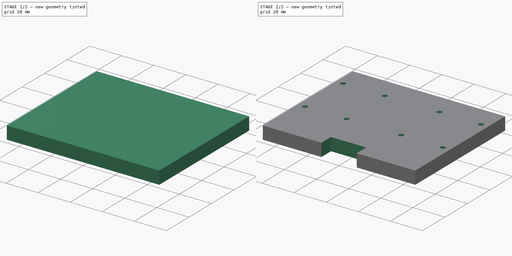
[diagram: build sequence overview — one tinted view per stage of 2, left to right]
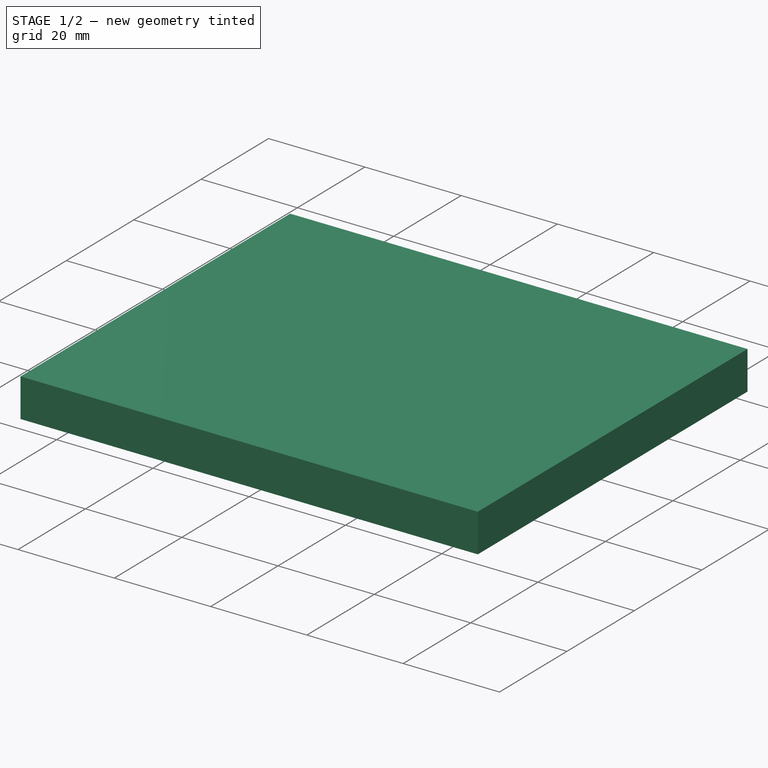
[diagram: stage 1 of 2 — iso view after this stage's code; geometry added in this stage tinted green]
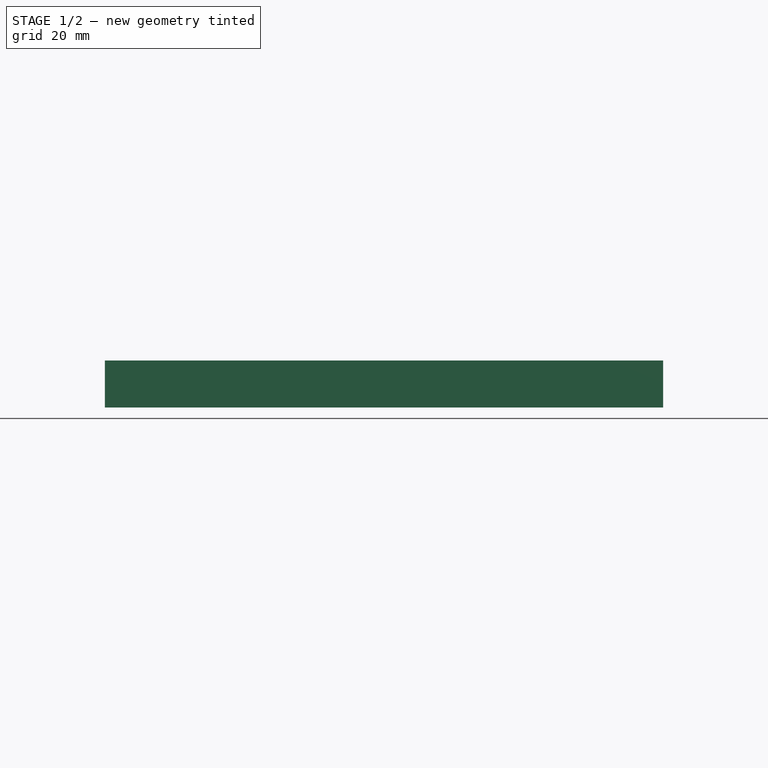
[diagram: stage 1 of 2 — front view after this stage's code; geometry added in this stage tinted green]
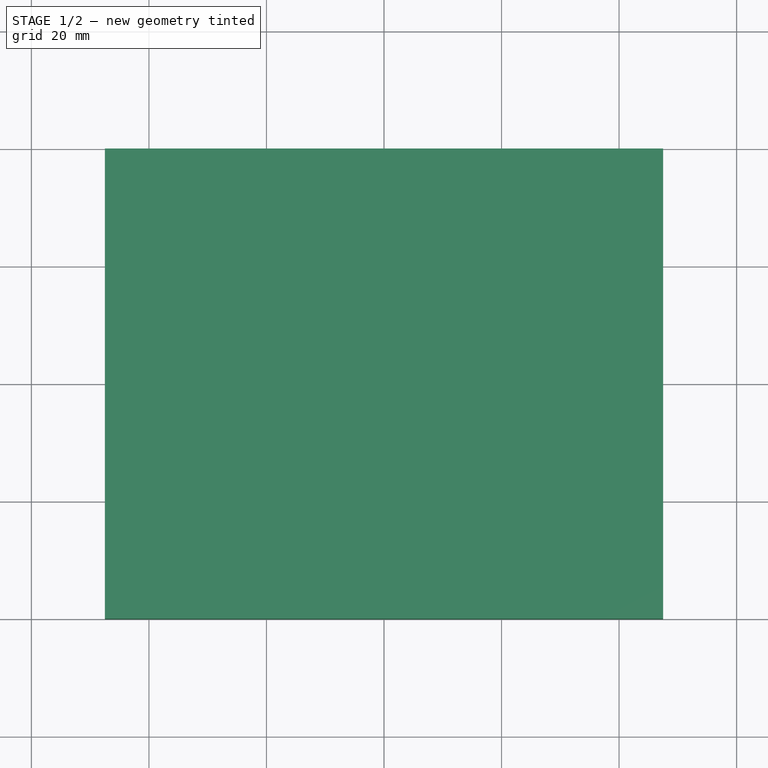
[diagram: stage 1 of 2 — top view after this stage's code; geometry added in this stage tinted green]
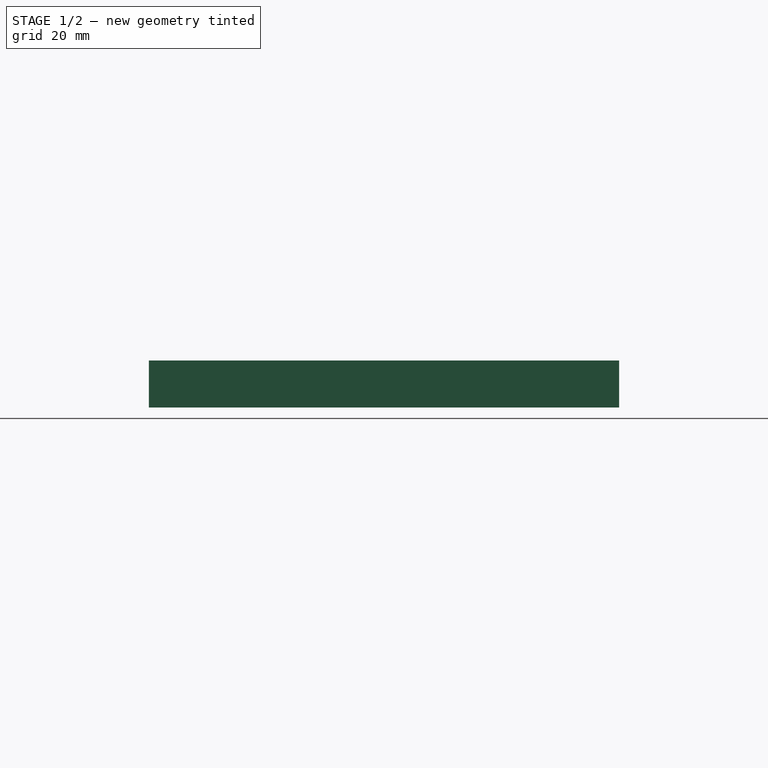
[diagram: stage 1 of 2 — right view after this stage's code; geometry added in this stage tinted green]
FCSTD DOCUMENT  (FreeCAD 0.21R33771 (Git))
Label: PiastraTorretta
License: All rights reserved
LicenseURL: https://en.wikipedia.org/wiki/All_rights_reserved
objects: Sketcher::SketchObject×2, PartDesign::Pad×1, PartDesign::Pocket×1, PartDesign::CoordinateSystem×1, PartDesign::Body×1
note: 8 computed .brp shape members not serialized (recipe doc carries the construction recipe); baked Part::Feature solids carry a one-line shape summary decoded from their .brp

FEATURE [Sketcher::SketchObject] Sketch
  FullyConstrained = true
  MapMode = 5
  Support = -> [XY_Plane]
  sketch-geometry (4):
    g0: LineSegment StartX=-47.5 StartY=40 StartZ=0 EndX=47.5 EndY=40 EndZ=0
    g1: LineSegment StartX=47.5 StartY=40 StartZ=0 EndX=47.5 EndY=-40 EndZ=0
    g2: LineSegment StartX=47.5 StartY=-40 StartZ=0 EndX=-47.5 EndY=-40 EndZ=0
    g3: LineSegment StartX=-47.5 StartY=-40 StartZ=0 EndX=-47.5 EndY=40 EndZ=0
  constraints (10):
    c: Coincident(g0,g1)
    c: Coincident(g1,g2)
    c: Coincident(g2,g3)
    c: Coincident(g3,g0)
    c: Horizontal(g0)
    c: Vertical(g1)
    c: Symmetric(g2,g1,g-2)
    c: Symmetric(g0,g2,g-1)
    c: DistanceX(g2,g2) = 95
    c: DistanceY(g3,g3) = 80
FEATURE [PartDesign::Pad] Pad
  Direction = (0,0,1)
  Length = 8
  Length2 = 10
  Profile = -> Sketch
  ReferenceAxis = -> Sketch [N_Axis]
  Type = 0
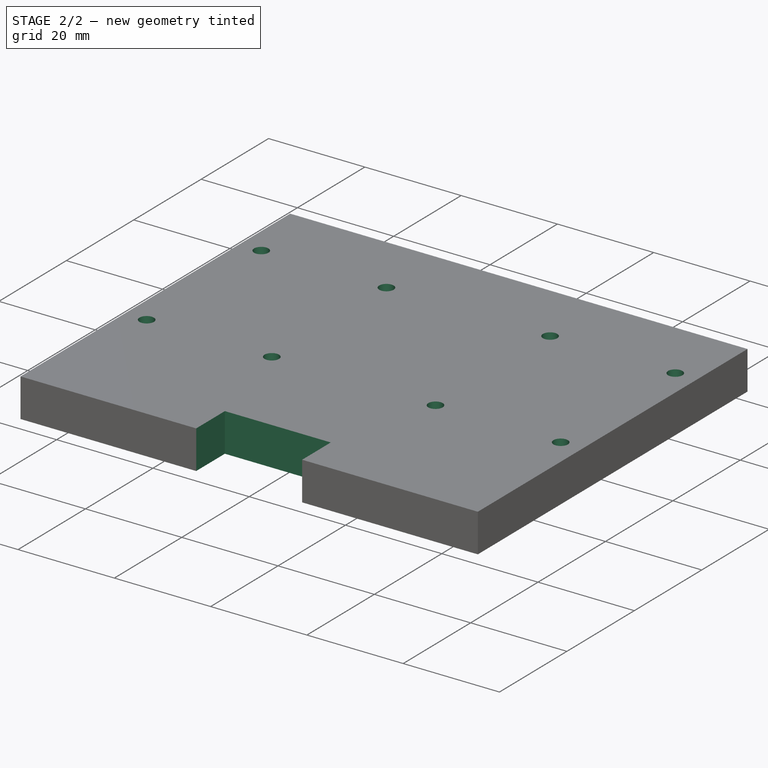
[diagram: stage 2 of 2 — iso view after this stage's code; geometry added in this stage tinted green]
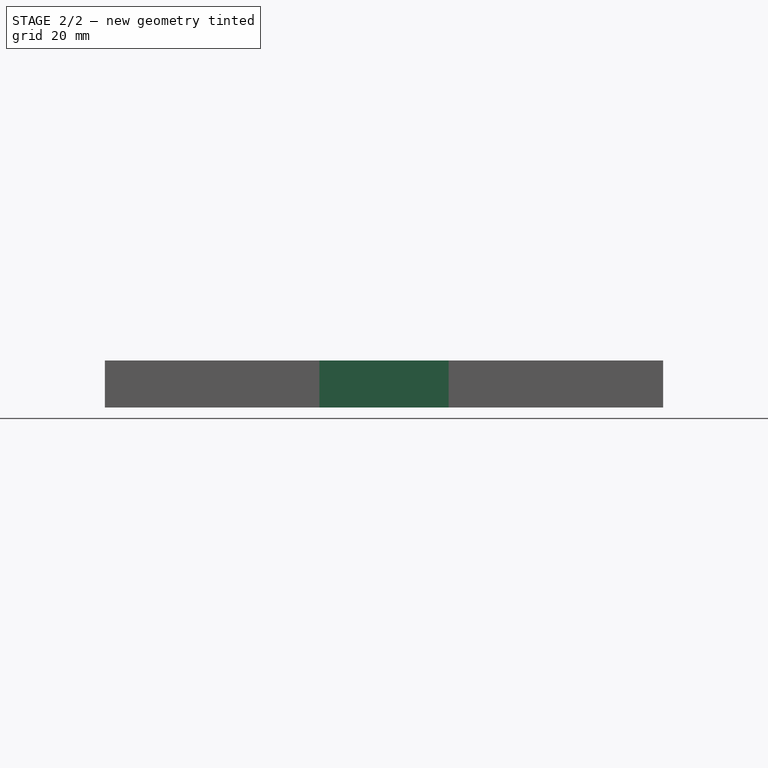
[diagram: stage 2 of 2 — front view after this stage's code; geometry added in this stage tinted green]
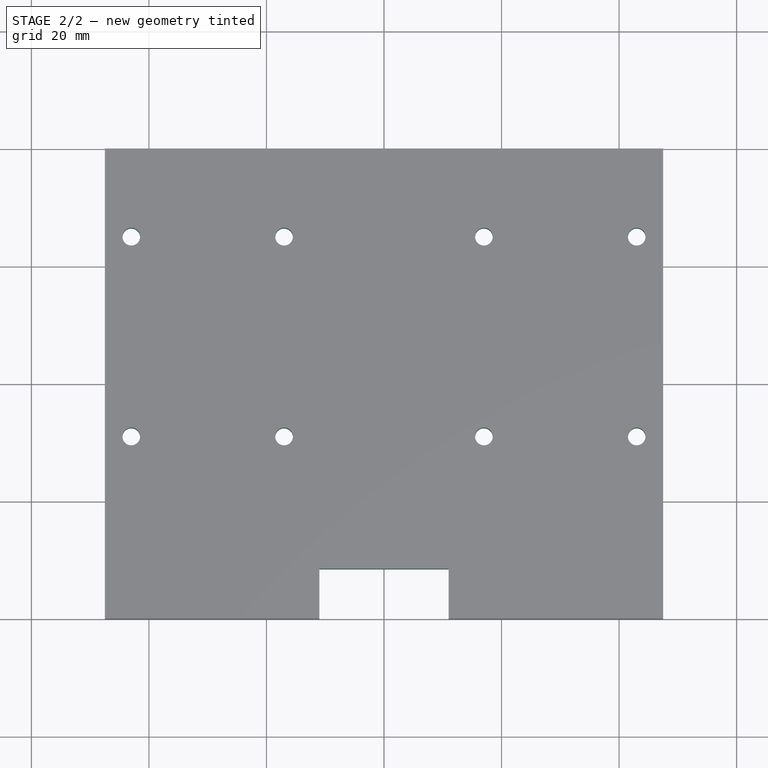
[diagram: stage 2 of 2 — top view after this stage's code; geometry added in this stage tinted green]
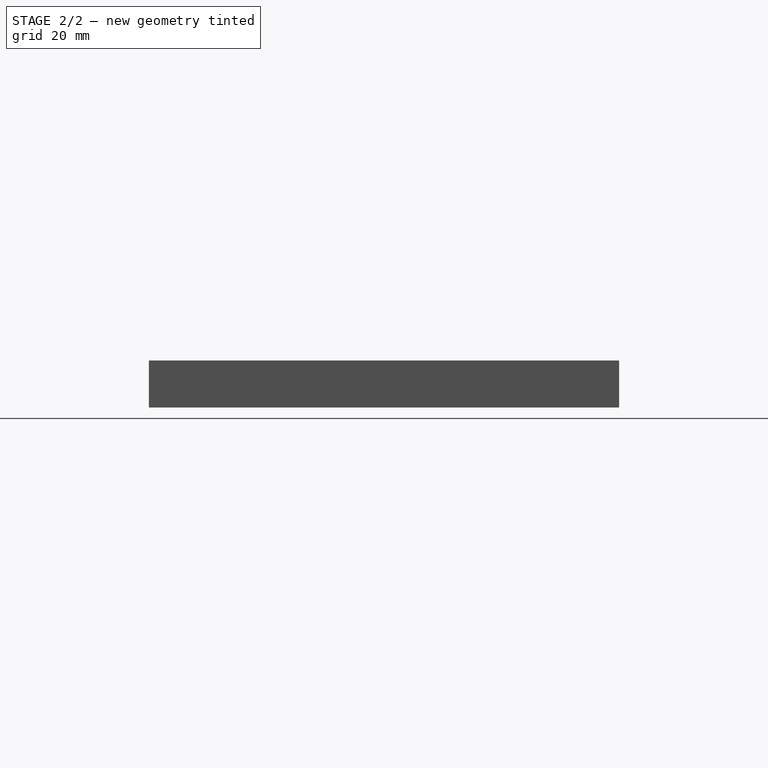
[diagram: stage 2 of 2 — right view after this stage's code; geometry added in this stage tinted green]
FEATURE [Sketcher::SketchObject] Sketch001
  ExternalGeometry = -> [Pad]
  FullyConstrained = true
  MapMode = 5
  Placement = pos=(0,0,8) rot=(0,0,1;0rad)
  Support = -> [Pad]
  sketch-geometry (21):
    g0: LineSegment StartX=-43 StartY=25 StartZ=0 EndX=-17 EndY=25 EndZ=0
    g1: LineSegment StartX=-17 StartY=25 StartZ=0 EndX=-17 EndY=-9 EndZ=0
    g2: LineSegment StartX=-17 StartY=-9 StartZ=0 EndX=-43 EndY=-9 EndZ=0
    g3: LineSegment StartX=-43 StartY=-9 StartZ=0 EndX=-43 EndY=25 EndZ=0
    g4: Circle CenterX=-43 CenterY=25 CenterZ=0 NormalX=0 NormalY=0 NormalZ=1 AngleXU=0 Radius=1.5
    g5: Circle CenterX=-17 CenterY=25 CenterZ=0 NormalX=0 NormalY=0 NormalZ=1 AngleXU=0 Radius=1.5
    g6: Circle CenterX=-17 CenterY=-9 CenterZ=0 NormalX=0 NormalY=0 NormalZ=1 AngleXU=0 Radius=1.5
    g7: Circle CenterX=-43 CenterY=-9 CenterZ=0 NormalX=0 NormalY=0 NormalZ=1 AngleXU=0 Radius=1.5
    g8: LineSegment StartX=17 StartY=25 StartZ=0 EndX=43 EndY=25 EndZ=0
    g9: LineSegment StartX=43 StartY=25 StartZ=0 EndX=43 EndY=-9 EndZ=0
    g10: LineSegment StartX=43 StartY=-9 StartZ=0 EndX=17 EndY=-9 EndZ=0
    g11: LineSegment StartX=17 StartY=-9 StartZ=0 EndX=17 EndY=25 EndZ=0
    g12: Circle CenterX=17 CenterY=25 CenterZ=0 NormalX=0 NormalY=0 NormalZ=1 AngleXU=0 Radius=1.5
    g13: Circle CenterX=43 CenterY=25 CenterZ=0 NormalX=0 NormalY=0 NormalZ=1 AngleXU=0 Radius=1.5
    g14: Circle CenterX=43 CenterY=-9 CenterZ=0 NormalX=0 NormalY=0 NormalZ=1 AngleXU=0 Radius=1.5
    g15: Circle CenterX=17 CenterY=-9 CenterZ=0 NormalX=0 NormalY=0 NormalZ=1 AngleXU=0 Radius=1.5
    g16: LineSegment StartX=-43 StartY=25 StartZ=0 EndX=17 EndY=25 EndZ=0
    g17: LineSegment StartX=-11 StartY=-31.5 StartZ=0 EndX=11 EndY=-31.5 EndZ=0
    g18: LineSegment StartX=11 StartY=-31.5 StartZ=0 EndX=11 EndY=-40 EndZ=0
    g19: LineSegment StartX=11 StartY=-40 StartZ=0 EndX=-11 EndY=-40 EndZ=0
    g20: LineSegment StartX=-11 StartY=-40 StartZ=0 EndX=-11 EndY=-31.5 EndZ=0
  constraints (52):
    c: Horizontal(g0)
    c: Coincident(g1,g0)
    c: Vertical(g1)
    c: Coincident(g2,g1)
    c: Horizontal(g2)
    c: Coincident(g3,g2)
    c: Coincident(g3,g0)
    c: Vertical(g3)
    c: Coincident(g4,g0)
    c: Coincident(g5,g0)
    c: Coincident(g6,g1)
    c: Coincident(g7,g2)
    c: Radius(g4) = 1.5
    c: Equal(g4,g5)
    c: Equal(g5,g6)
    c: Equal(g6,g7)
    c: DistanceY(g3,g3) = 34
    c: DistanceX(g2,g2) = 26
    c: Horizontal(g8)
    c: Coincident(g9,g8)
    c: Vertical(g9)
    c: Coincident(g10,g9)
    c: Horizontal(g10)
    c: Coincident(g11,g10)
    c: Coincident(g11,g8)
    c: Vertical(g11)
    c: Coincident(g12,g8)
    c: Coincident(g13,g8)
    c: Coincident(g14,g9)
    c: Coincident(g15,g10)
    c: Radius(g12) = 1.5
    c: Equal(g12,g13)
    c: Equal(g13,g14)
    c: Equal(g14,g15)
    c: DistanceY(g11,g11) = 34
    c: DistanceX(g10,g10) = 26
    c: Coincident(g0,g16)
    c: Coincident(g8,g16)
    c: Coincident(g17,g18)
    c: Coincident(g18,g19)
    c: Coincident(g19,g20)
    c: Coincident(g20,g17)
    c: Horizontal(g17)
    c: Vertical(g18)
    c: Vertical(g20)
    c: DistanceX(g19,g19) = 22
    c: DistanceY(g18,g18) = 8.5
    c: Symmetric(g19,g18,g-2)
    c: PointOnObject(g19,g-3)
    c: DistanceX(g5,g-1) = 17
    c: Symmetric(g5,g12,g-2)
    c: DistanceY(g-1,g5) = 25
FEATURE [PartDesign::Pocket] Pocket
  BaseFeature = -> Pad
  Direction = (0,0,-1)
  Length = 6
  Length2 = 5
  Profile = -> Sketch001
  ReferenceAxis = -> Sketch001 [N_Axis]
  Type = 1
FEATURE [PartDesign::CoordinateSystem] LCS_PiastraTorretta
  AttacherType = Attacher::AttachEngine3D
FEATURE [PartDesign::Body] Body
  Group = -> [Sketch,Pad,Sketch001,Pocket,LCS_PiastraTorretta]
  Origin = -> Origin
  Tip = -> Pocket
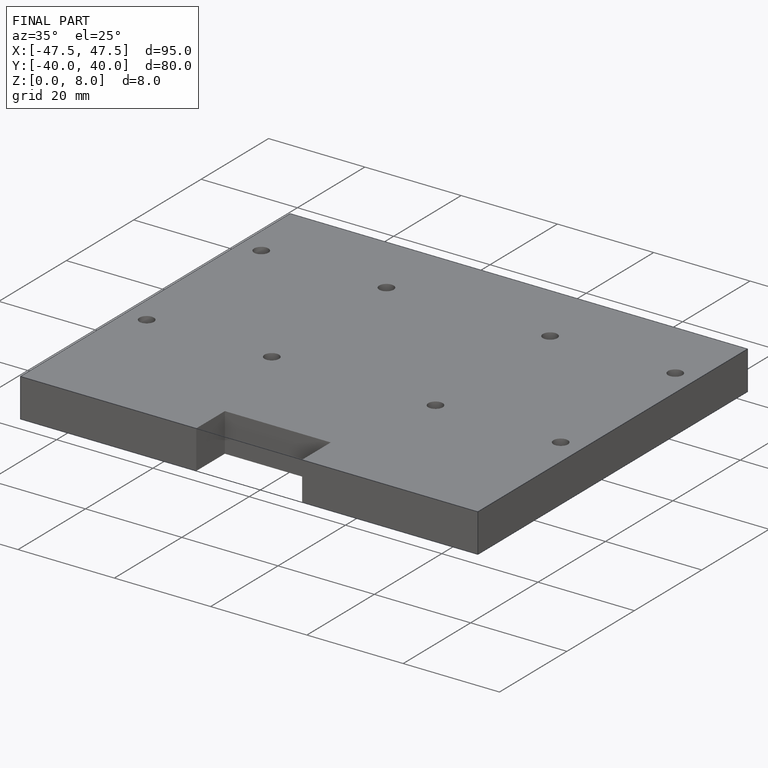
[diagram: finished part — iso view with bounding-box wireframe]
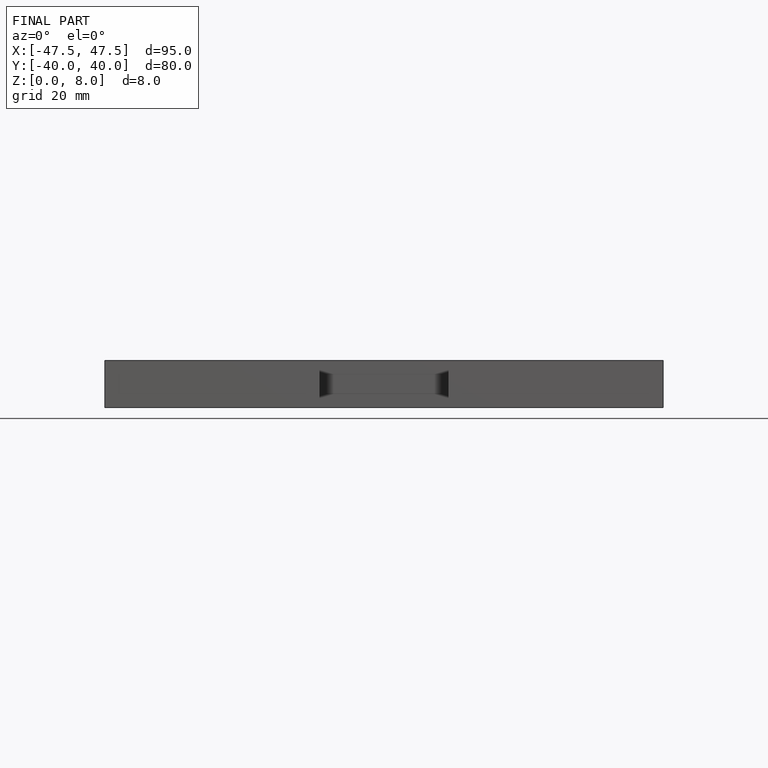
[diagram: finished part — front view with bounding-box wireframe]
